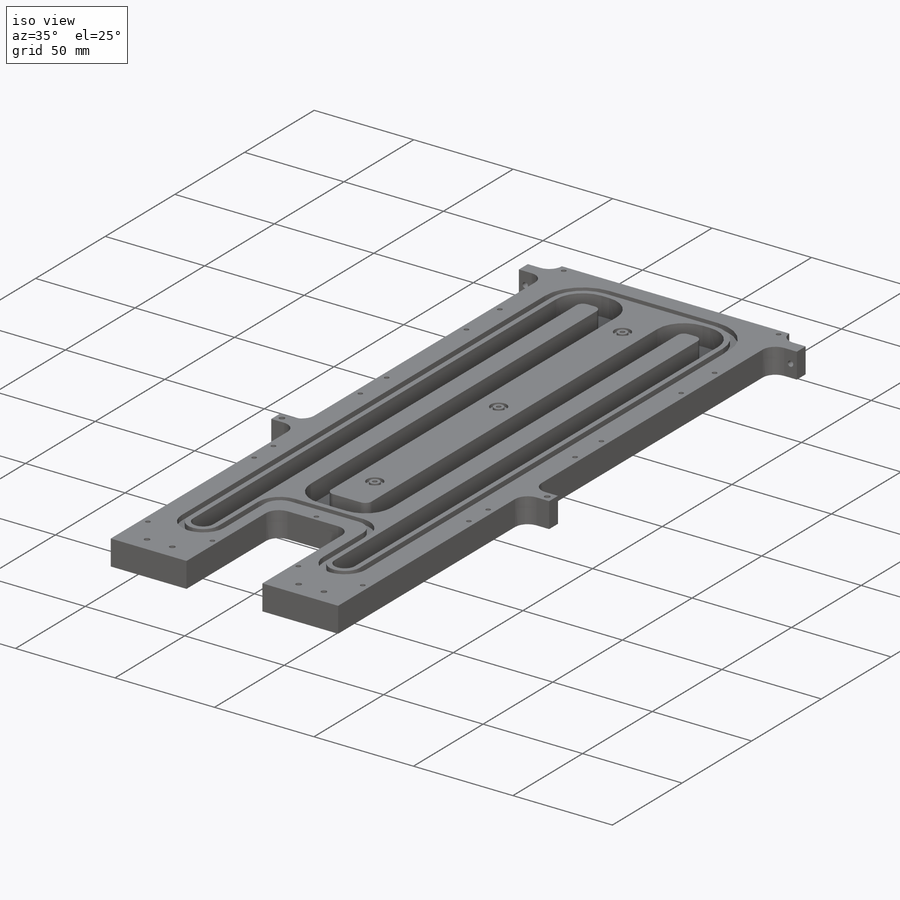
[diagram: iso view]
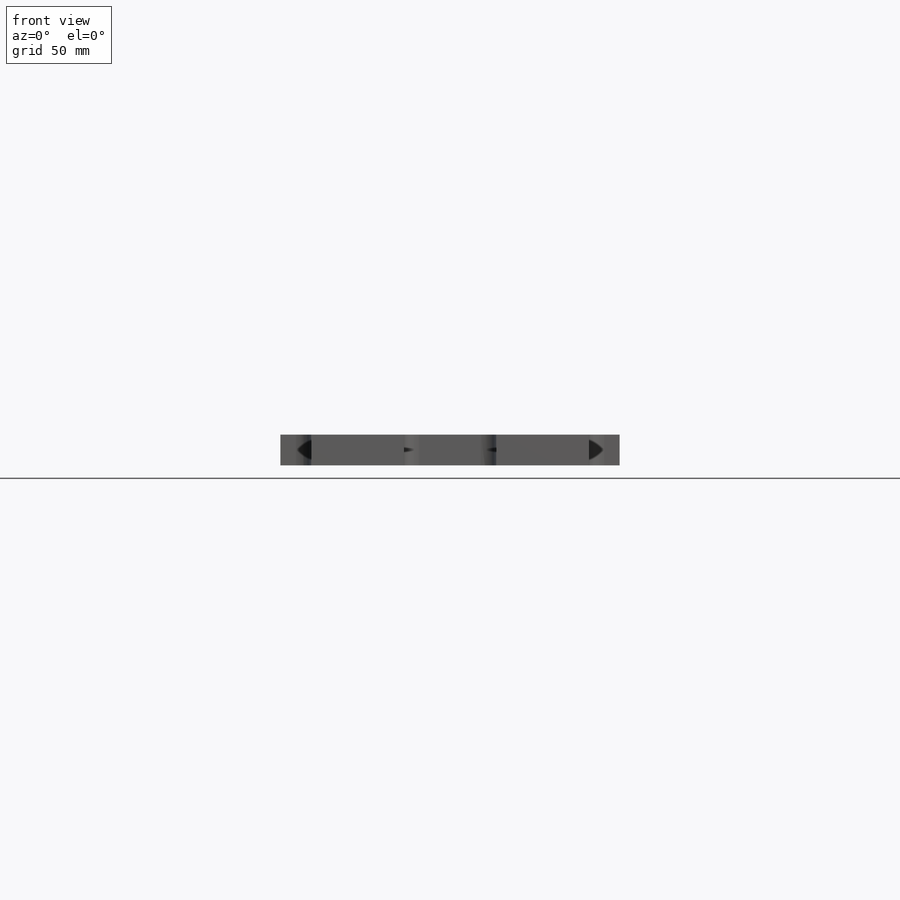
[diagram: front view]
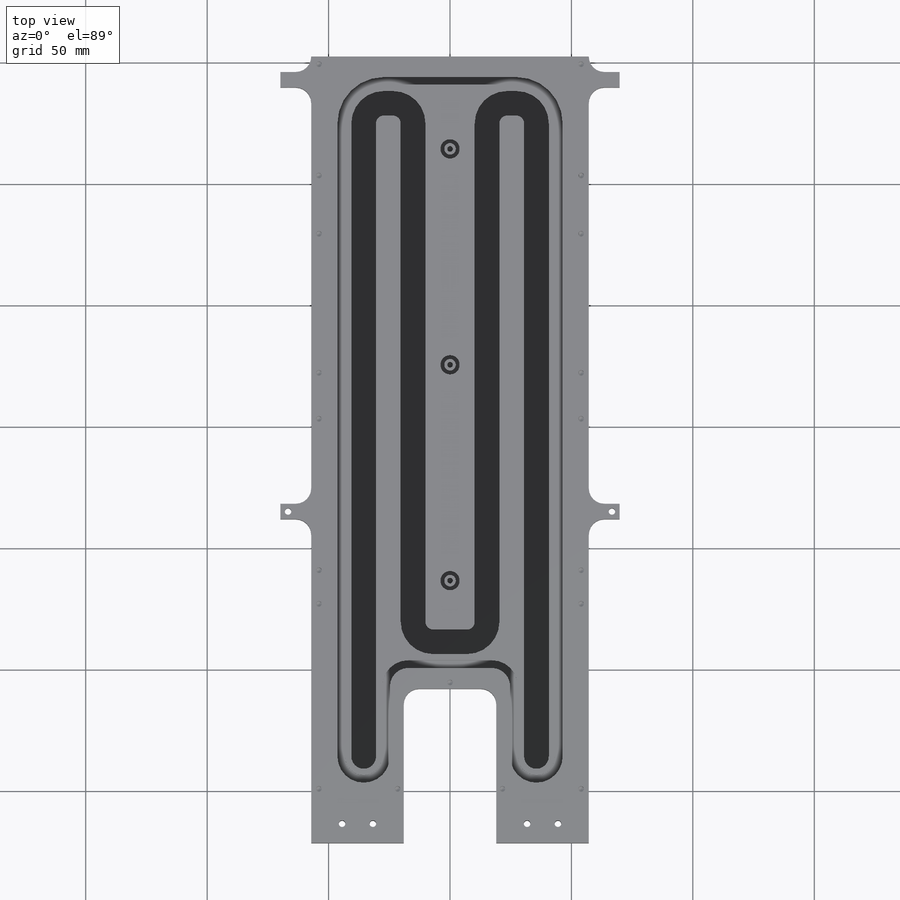
[diagram: top view]
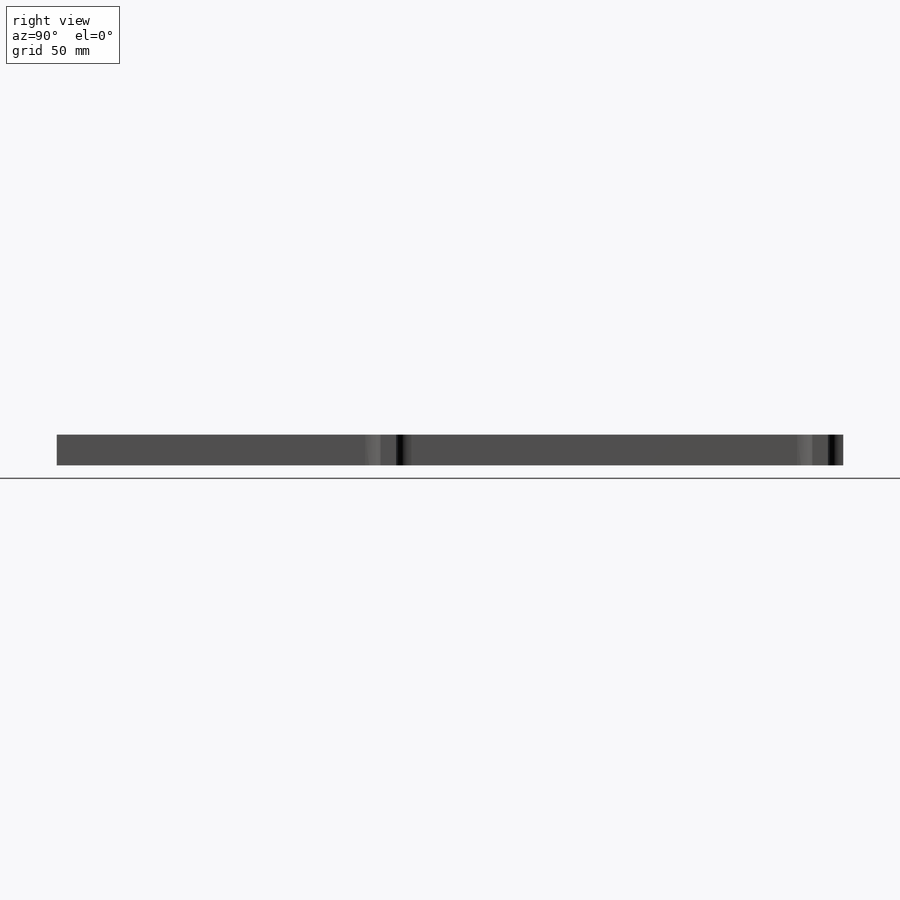
[diagram: right view]
SOLIDWORKS PART (.sldprt)
format: sldprt  version: not decoded by parser v0  size: 859,648 bytes
history: native  units: mm
features: sketch x19, fillet x16, extrude x5, hole x4, cut_extrude x4, material x1 (+11 scaffold rows collapsed)
feature tree (60):
  scaffold x11  (default folders/planes/origin — collapsed)
  material  "6061 Alloy"
  sketch  "Sketch1"  dims[D1=114.3mm D2=323.85mm D3=38.1mm D4=38.1mm D5=63.5mm D6=57.15mm D7=152.4mm]
  extrude  "Extrude1"  Depth=12.7mm
  fillet  "Fillet1"  Radius=6.35mm
  fillet  "Fillet2"  Radius=6.35mm
  sketch  "Sketch7"  dims[c1.D1=12.7mm c1.D2=6.35mm c1.D3=25.4mm c1.D4=50.8mm c1.D5=177.8mm c2.D1=6.35mm]
  extrude  "Extrude2"  Depth=12.7mm
  sketch  "Sketch8"  dims[c1.D1=6.35mm c1.D2=12.7mm c1.D3=50.8mm c1.D4=25.4mm c1.D5=177.8mm c2.D2=311.15mm c2.D3=6.35mm]
  extrude  "Extrude3"  Depth=12.7mm
  fillet  "Fillet3"  Radius=6.35mm
  fillet  "Fillet8"  Radius=6.35mm
  sketch  "Sketch9"  dims[D1=6.35mm D2=133.35mm]
  sketch  "Sketch10"  dims[D1=6.35mm D2=133.35mm]
  extrude  "Extrude4"  Depth=12.7mm
  extrude  "Extrude5"  Depth=12.7mm
  fillet  "Fillet9"  Radius=6.35mm
  fillet  "Fillet10"  Radius=6.35mm
  fillet  "Fillet11"  Radius=6.35mm
  fillet  "Fillet12"  Radius=6.35mm
  sketch  "Sketch11"  dims[D1=3.175mm D2=3.175mm D3=3.175mm D4=3.175mm]
  sketch  "Sketch12"  dims[D1=3.175mm D2=6.35mm D3=6.35mm D4=3.175mm]
  hole  "Tap Drill for #4 Tap1"  Diameter=2.2606mm Depth=6.35mm
  sketch  "3DSketch1"  dims[c1.D1=3.175mm c1.D2=3.175mm c1.D3=3.175mm c1.D4=~2.839173mm c1.D9=20.955mm c1.D5=76.2mm c1.D6=76.2mm c1.D7=76.2mm c1.D8=57.15mm c2.D4=69.3282mm c2.D9=~76.010392mm c2.D13=12.7mm c2.D10=~3.550378mm c3.D9=3.175mm c3.D11=~3.621639mm c4.D9=3.175mm c4.D12=177.8mm c4.D13=41.275mm c4.D14=41.275mm c4.D4=17.78mm c4.D15=25.4mm c5.D9=~17.040617mm c5.D4=25.4mm c5.D10=2.54mm c5.D11=2.54mm c5.D13=2.54mm c5.D14=~19.533598mm c6.D4=34.7345mm c7.D4=69.85mm c7.D8=38.1mm]
  sketch  "Sketch3"  dims[hole-wizard template sketch: 47 standard entries collapsed; hole parameters kept: c15.Hole Depth=6.35mm c15.D3=~14.816244mm c15.Drill Angle=118.0deg]
  sketch  "Sketch13"  dims[D1=4.7625mm D2=7.9375mm]
  cut_extrude  "Cut-Extrude6"  Depth=1.5875mm
  sketch  "Sketch14"  dims[c1.D3=2.2606mm c1.D4=2.5mm c1.D1=108.0mm c1.D2=90.0mm c2.D3=45.0mm c2.D4=10.5mm c2.D5=15.875mm]
  cut_extrude  "Cut-Extrude7"  Depth=6.35mm
  sketch  "Sketch16"  dims[c1.D3=~6.504263mm c1.D1=21.59mm c1.D2=17.78mm c2.D3=5.08mm c2.D4=5.08mm c2.D5=6.35mm c2.D6=16.51mm c2.D7=14.224mm c2.D8=10.16mm c2.D9=10.16mm c2.D10=10.16mm c2.D11=10.16mm c2.D12=14.224mm c2.D2=287.02mm]
  cut_extrude  "Cut-Extrude8"  Depth=9.525mm
  fillet  "Fillet13"  Radius=5.08mm
  fillet  "Fillet14"  Radius=3.175mm
  sketch  "Sketch17"  dims[D1=2.54mm D2=2.54mm D3=2.54mm D4=2.54mm D5=2.54mm D6=2.54mm D7=2.54mm D8=2.54mm D9=3.175mm D10=3.175mm D11=3.175mm D12=3.175mm D13=3.175mm D14=3.175mm D15=3.175mm D16=3.175mm]
  cut_extrude  "Cut-Extrude9"  Depth=2.54mm
  fillet  "Fillet15"  Radius=7.62mm
  fillet  "Fillet16"  Radius=10.795mm
  fillet  "Fillet17"  Radius=6.35mm
  fillet  "Fillet18"  Radius=13.335mm
  hole  "Tap Drill for #6 Tap1"  Diameter=2.7051mm Depth=6.35mm
  sketch  "3DSketch2"
  sketch  "Sketch18"  dims[hole-wizard template sketch: 60 standard entries collapsed; hole parameters kept: c18.Thru Hole Depth=6.35mm]
  fillet  "Fillet19"  Radius=15.875mm
  fillet  "Fillet20"  Radius=19.05mm
  hole  "Tap Drill for #4 Tap2"  Diameter=2.2606mm Depth=6.35mm
  sketch  "3DSketch3"  dims[D1=49.022mm D2=3.175mm D3=3.175mm D4=81.28mm D5=81.28mm]
  sketch  "Sketch19"  dims[hole-wizard template sketch: 47 standard entries collapsed; hole parameters kept: c15.Hole Depth=6.35mm c15.D3=~14.816244mm c15.Drill Angle=118.0deg]
  hole  "Tap Drill for #6 Tap2"  Diameter=2.7051mm Depth=12.7mm
  sketch  "3DSketch4"  dims[c1.D1=~6.517877mm c1.D7=6.35mm c1.D2=12.7mm c1.D3=12.7mm c1.D4=12.7mm c1.D5=12.7mm c1.D6=12.7mm c2.D1=4.7625mm]
  sketch  "Sketch20"  dims[hole-wizard template sketch: 60 standard entries collapsed; hole parameters kept: c18.Thru Hole Depth=12.7mm]
decode coverage: 47 of 48 modeling features carry decoded parameters
note: ~ marks probable driven/reference dimensions
summary: Diameter pulled from absorbed wizard sketch
note: suppression state not decoded; provenance and decode notes live in map.json
